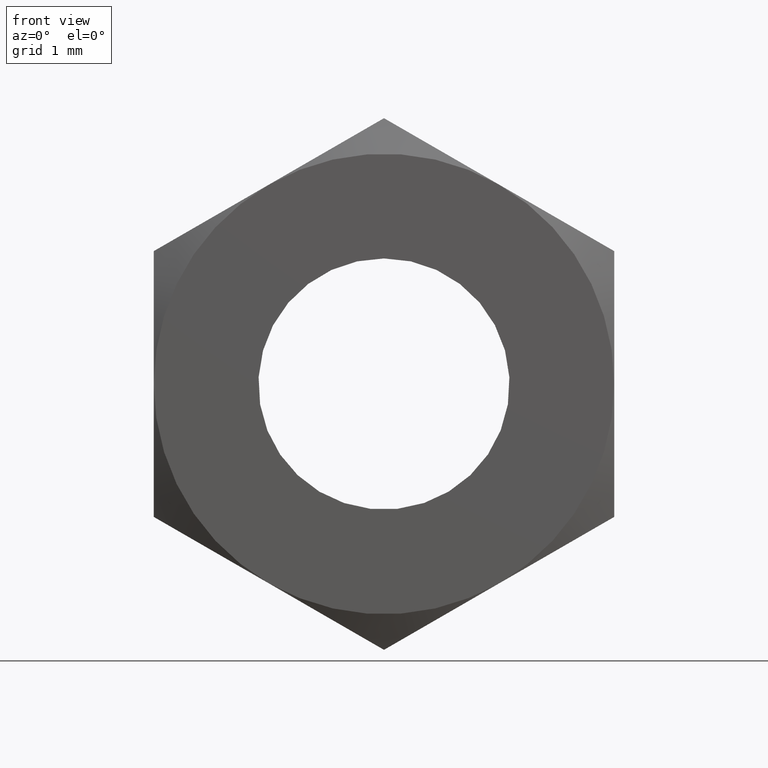
[diagram: clean part render]
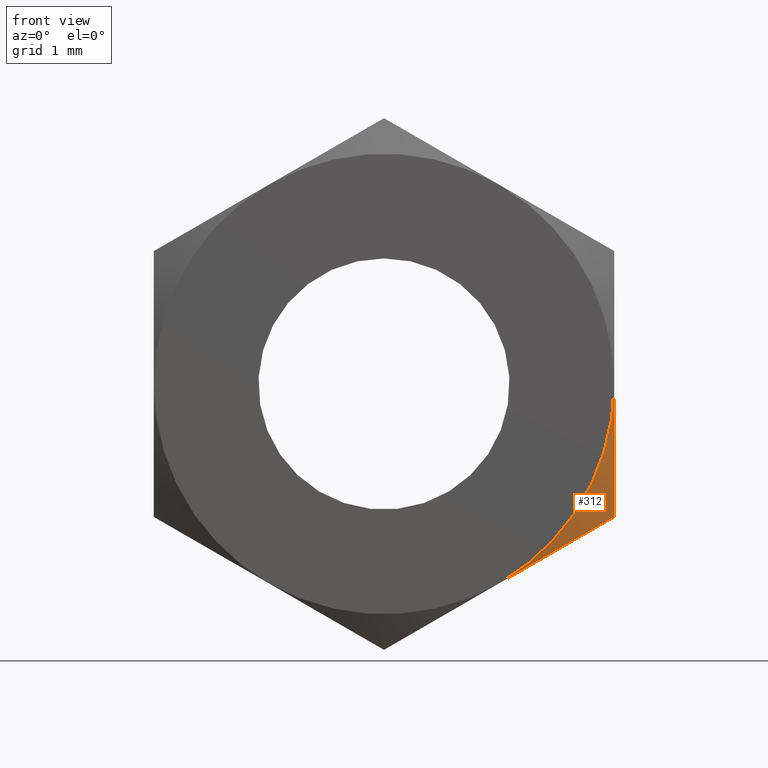
[diagram: same view with one face highlighted and labeled with its STEP entity id]
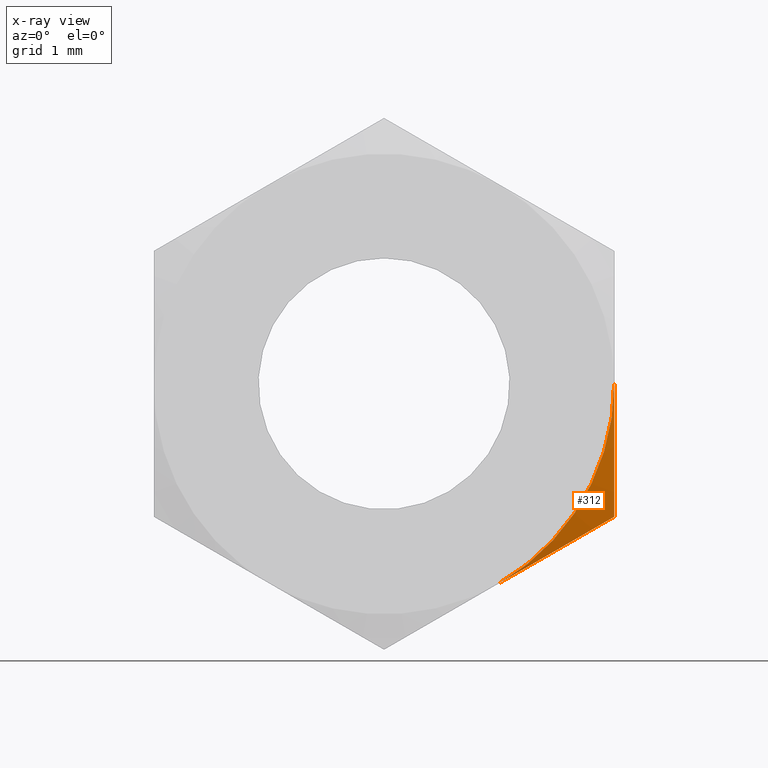
[diagram: x-ray of the same camera — body ghosted, the highlighted face saturated]
A machine part, front view. The second image highlights one B-rep face of the part: STEP entity #312.
The next image is the same camera in x-ray: the body ghosted, the highlighted face saturated — about 0% of this face is hidden behind the body in this view.
In plain terms, the highlighted conical surface has half-angle 60 deg.
Its self-contained STEP definition (entity closure, byte-faithful):
#57=FACE_OUTER_BOUND('',#80,.T.);
#80=EDGE_LOOP('',(#271,#272,#273));
#101=(
BOUNDED_CURVE()
B_SPLINE_CURVE(2,(#544,#545,#546),.UNSPECIFIED.,.F.,.F.)
B_SPLINE_CURVE_WITH_KNOTS((3,3),(-0.88673192173023,-0.556311181235028),
 .UNSPECIFIED.)
CURVE()
GEOMETRIC_REPRESENTATION_ITEM()
RATIONAL_B_SPLINE_CURVE((2.07072231740623,2.07072231740622,1.92205114401651))
REPRESENTATION_ITEM('')
);
#104=(
BOUNDED_CURVE()
B_SPLINE_CURVE(2,(#557,#558,#559),.UNSPECIFIED.,.F.,.F.)
B_SPLINE_CURVE_WITH_KNOTS((3,3),(-1.21715266222542,-0.886731921730228),
 .UNSPECIFIED.)
CURVE()
GEOMETRIC_REPRESENTATION_ITEM()
RATIONAL_B_SPLINE_CURVE((1.92205114401651,2.07072231740622,2.07072231740622))
REPRESENTATION_ITEM('')
);
#120=CIRCLE('',#353,2.75);
#144=VERTEX_POINT('',#539);
#145=VERTEX_POINT('',#543);
#147=VERTEX_POINT('',#556);
#180=EDGE_CURVE('',#144,#145,#101,.T.);
#184=EDGE_CURVE('',#145,#147,#104,.T.);
#191=EDGE_CURVE('',#147,#144,#120,.T.);
#271=ORIENTED_EDGE('',*,*,#191,.F.);
#272=ORIENTED_EDGE('',*,*,#184,.F.);
#273=ORIENTED_EDGE('',*,*,#180,.F.);
#291=CONICAL_SURFACE('',#361,2.75,1.0471975511966);
#312=ADVANCED_FACE('',(#57),#291,.T.);
#353=AXIS2_PLACEMENT_3D('',#573,#420,#421);
#361=AXIS2_PLACEMENT_3D('',#581,#436,#437);
#420=DIRECTION('center_axis',(0.,-1.,0.));
#421=DIRECTION('ref_axis',(-1.77635683940025E-15,0.,1.));
#436=DIRECTION('center_axis',(0.,1.,0.));
#437=DIRECTION('ref_axis',(0.,0.,1.));
#539=CARTESIAN_POINT('',(2.75,-1.2,-7.51157299368579E-16));
#543=CARTESIAN_POINT('',(2.75,-0.954379906938137,-1.58771324027149));
#544=CARTESIAN_POINT('Ctrl Pts',(2.75,-1.2,-2.14461014940104E-15));
#545=CARTESIAN_POINT('Ctrl Pts',(2.75,-1.2,-0.736860279194339));
#546=CARTESIAN_POINT('Ctrl Pts',(2.75,-0.954379906931856,-1.58771324029324));
#556=CARTESIAN_POINT('',(1.375,-1.2,-2.38156986040721));
#557=CARTESIAN_POINT('Ctrl Pts',(2.75000000001884,-0.954379906931856,-1.58771324026061));
#558=CARTESIAN_POINT('Ctrl Pts',(2.01313972082198,-1.19999999999999,-2.01313972081005));
#559=CARTESIAN_POINT('Ctrl Pts',(1.375,-1.19999999999999,-2.38156986040722));
#573=CARTESIAN_POINT('Origin',(0.,-1.2,0.));
#581=CARTESIAN_POINT('Origin',(0.,-1.2,0.));